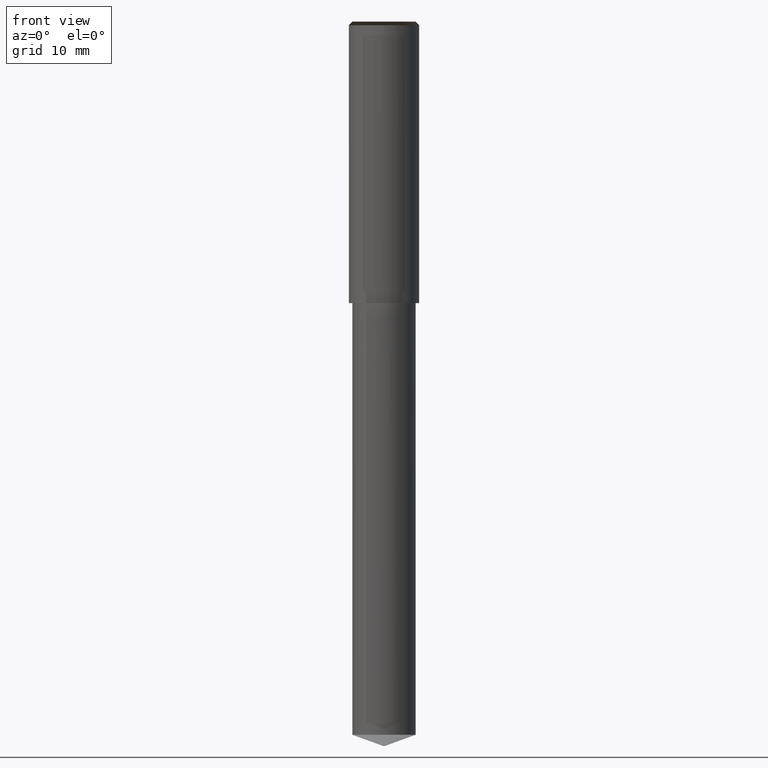
[diagram: clean part render]
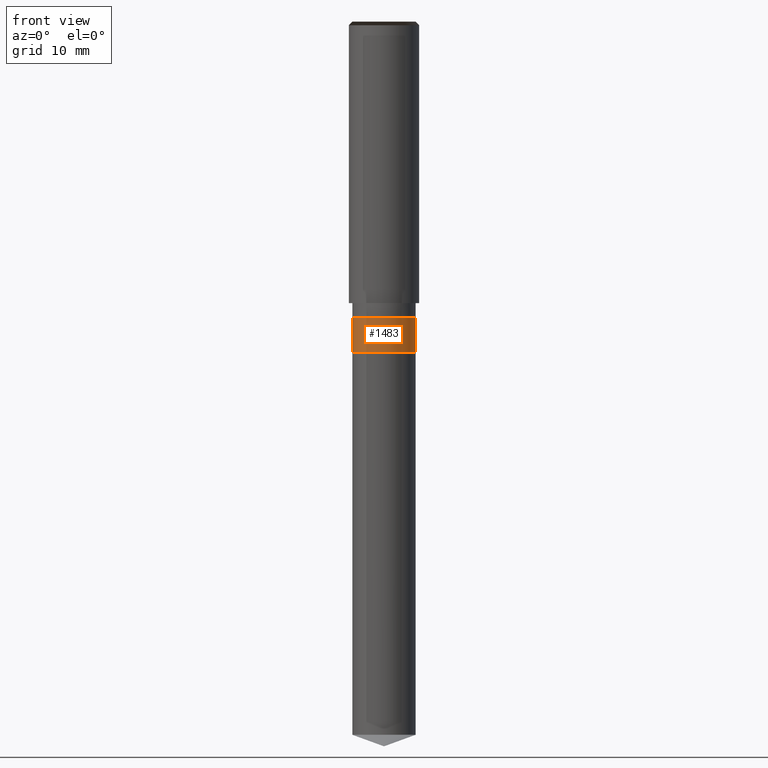
[diagram: same view with one face highlighted and labeled with its STEP entity id]
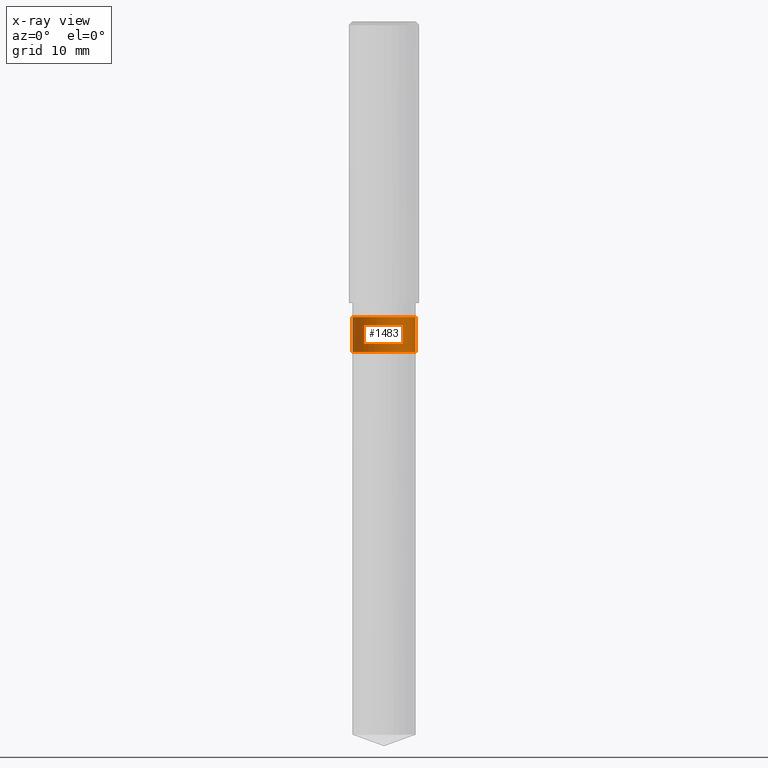
[diagram: x-ray of the same camera — body ghosted, the highlighted face saturated]
A machine part, front view. The second image highlights one B-rep face of the part: STEP entity #1483.
The next image is the same camera in x-ray: the body ghosted, the highlighted face saturated — about 0% of this face is hidden behind the body in this view.
In plain terms, the highlighted face is a freeform B-spline surface patch.
Its self-contained STEP definition (entity closure, byte-faithful):
#1150=CARTESIAN_POINT('',(4.5,0.0,-7.0));
#1154=CARTESIAN_POINT('',(-4.5,0.0,-7.0));
#1159=CARTESIAN_POINT('',(-4.5,-4.5,-7.0));
#1160=CARTESIAN_POINT('',(0.0,-4.5,-7.0));
#1161=CARTESIAN_POINT('',(4.5,-4.5,-7.0));
#1162=CARTESIAN_POINT('',(4.5,0.0,-2.0));
#1166=CARTESIAN_POINT('',(-4.5,0.0,-2.0));
#1188=CARTESIAN_POINT('',(-4.5,-4.5,-2.0));
#1189=CARTESIAN_POINT('',(0.0,-4.5,-2.0));
#1190=CARTESIAN_POINT('',(4.5,-4.5,-2.0));
#1464=(
BOUNDED_SURFACE()
B_SPLINE_SURFACE(1,2,(
(#1154,#1159,#1160,#1161,#1150),
(#1166,#1188,#1189,#1190,#1162)
), .UNSPECIFIED.,.F.,.F.,.F.)
B_SPLINE_SURFACE_WITH_KNOTS((2,2),(3,2,3),(
0.0,1.0),(
0.0,0.5,1.0), .UNSPECIFIED.)
GEOMETRIC_REPRESENTATION_ITEM()
RATIONAL_B_SPLINE_SURFACE(((1.0,0.707106781187,1.0,0.707106781187,1.0),
(1.0,0.707106781187,1.0,0.707106781187,1.0)
))
REPRESENTATION_ITEM('')
SURFACE()
);
#1465=(
BOUNDED_CURVE()
B_SPLINE_CURVE(2,(#1150,#1161,#1160,#1159,#1154),.UNSPECIFIED.,.F.,.F.)
B_SPLINE_CURVE_WITH_KNOTS((3,2,3),
(0.0,0.5,1.0),.UNSPECIFIED.)
CURVE()
GEOMETRIC_REPRESENTATION_ITEM()
RATIONAL_B_SPLINE_CURVE((1.0,0.707106781187,1.0,0.707106781187,1.0))
REPRESENTATION_ITEM('')
);
#1466=(
BOUNDED_CURVE()
B_SPLINE_CURVE(1,(#1154,#1166),.UNSPECIFIED.,.F.,.F.)
B_SPLINE_CURVE_WITH_KNOTS((2,2),
(0.0,1.0),.UNSPECIFIED.)
CURVE()
GEOMETRIC_REPRESENTATION_ITEM()
RATIONAL_B_SPLINE_CURVE((1.0,1.0))
REPRESENTATION_ITEM('')
);
#1467=(
BOUNDED_CURVE()
B_SPLINE_CURVE(2,(#1166,#1188,#1189,#1190,#1162),.UNSPECIFIED.,.F.,.F.)
B_SPLINE_CURVE_WITH_KNOTS((3,2,3),
(0.0,0.5,1.0),.UNSPECIFIED.)
CURVE()
GEOMETRIC_REPRESENTATION_ITEM()
RATIONAL_B_SPLINE_CURVE((1.0,0.707106781187,1.0,0.707106781187,1.0))
REPRESENTATION_ITEM('')
);
#1468=(
BOUNDED_CURVE()
B_SPLINE_CURVE(1,(#1162,#1150),.UNSPECIFIED.,.F.,.F.)
B_SPLINE_CURVE_WITH_KNOTS((2,2),
(0.0,1.0),.UNSPECIFIED.)
CURVE()
GEOMETRIC_REPRESENTATION_ITEM()
RATIONAL_B_SPLINE_CURVE((1.0,1.0))
REPRESENTATION_ITEM('')
);
#1469=VERTEX_POINT('',#1150);
#1470=VERTEX_POINT('',#1154);
#1471=VERTEX_POINT('',#1162);
#1472=VERTEX_POINT('',#1166);
#1473=EDGE_CURVE('',#1469,#1470,#1465,.T.);
#1474=EDGE_CURVE('',#1470,#1472,#1466,.T.);
#1475=EDGE_CURVE('',#1472,#1471,#1467,.T.);
#1476=EDGE_CURVE('',#1471,#1469,#1468,.T.);
#1477=ORIENTED_EDGE('',*,*,#1473,.T.);
#1478=ORIENTED_EDGE('',*,*,#1474,.T.);
#1479=ORIENTED_EDGE('',*,*,#1475,.T.);
#1480=ORIENTED_EDGE('',*,*,#1476,.T.);
#1481=EDGE_LOOP('',(#1477,#1478,#1479,#1480));
#1482=FACE_OUTER_BOUND('',#1481,.T.);
#1483=ADVANCED_FACE('',(#1482),#1464,.T.);